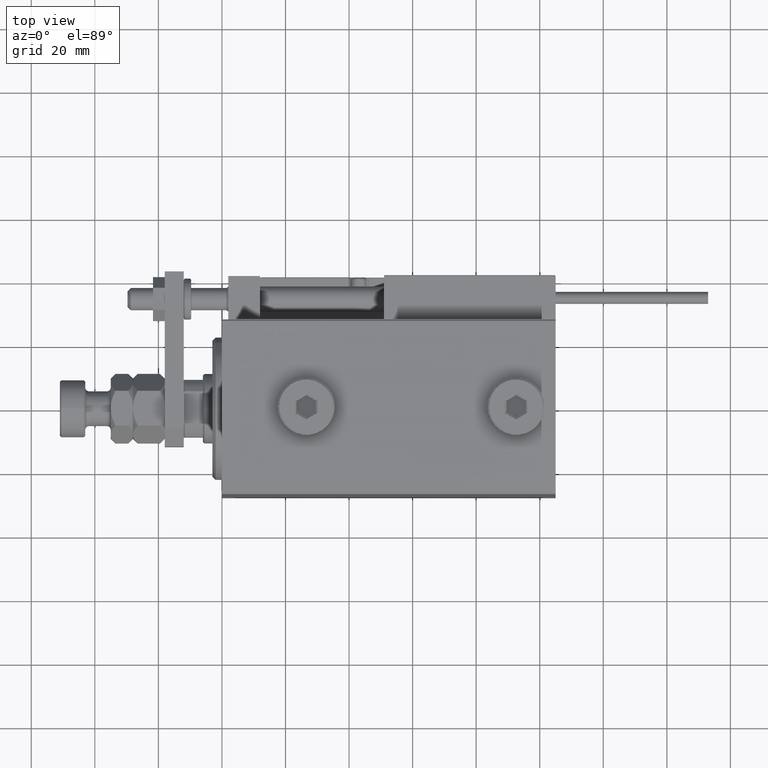
[diagram: clean part render]
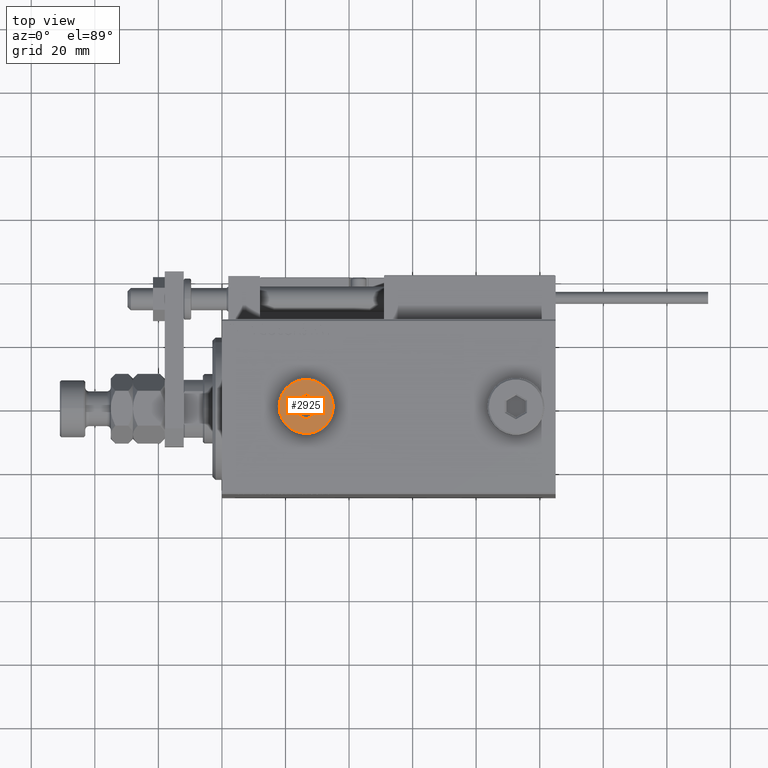
[diagram: same view with one face highlighted and labeled with its STEP entity id]
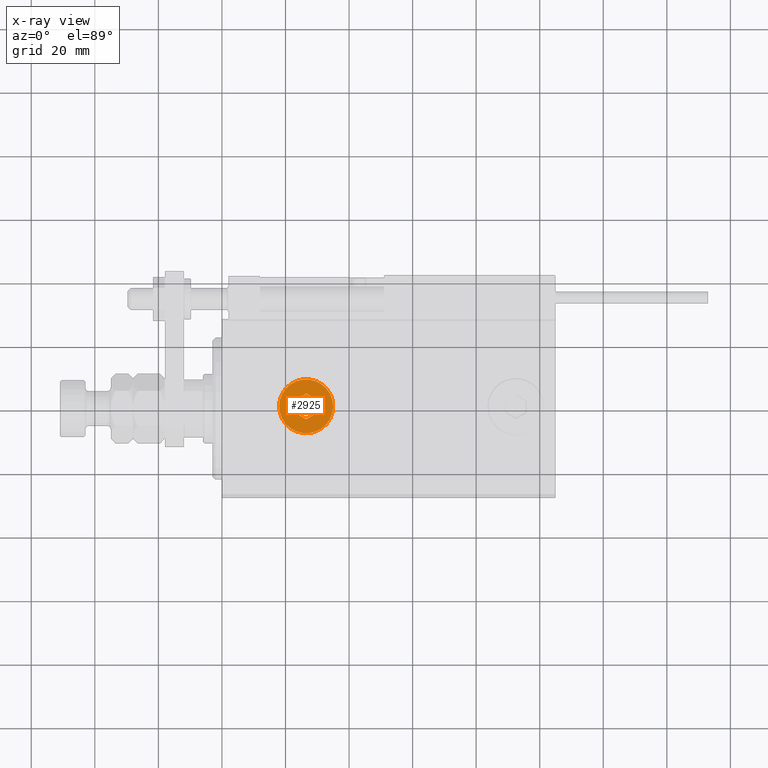
[diagram: x-ray of the same camera — body ghosted, the highlighted face saturated]
A machine part, top view. The second image highlights one B-rep face of the part: STEP entity #2925.
The next image is the same camera in x-ray: the body ghosted, the highlighted face saturated — about 0% of this face is hidden behind the body in this view.
In plain terms, the highlighted planar face has unit normal (0, 0, 1).
Its self-contained STEP definition (entity closure, byte-faithful):
#137 = FACE_OUTER_BOUND ( 'NONE', #45771, .T. ) ;
#154 = LINE ( 'NONE', #17636, #21721 ) ;
#2781 = ORIENTED_EDGE ( 'NONE', *, *, #39955, .T. ) ;
#2925 = ADVANCED_FACE ( 'NONE', ( #37004, #137 ), #19811, .T. ) ;
#4566 = VERTEX_POINT ( 'NONE', #15065 ) ;
#4895 = VERTEX_POINT ( 'NONE', #14729 ) ;
#4966 = DIRECTION ( 'NONE',  ( 0.8660254037844387076, -0.4999999999999998890, 0.000000000000000000 ) ) ;
#4997 = DIRECTION ( 'NONE',  ( 0.000000000000000000, 1.000000000000000000, 0.000000000000000000 ) ) ;
#5001 = EDGE_CURVE ( 'NONE', #5266, #10984, #154, .T. ) ;
#5266 = VERTEX_POINT ( 'NONE', #10893 ) ;
#5427 = DIRECTION ( 'NONE',  ( -0.8660254037844387076, -0.4999999999999998890, 0.000000000000000000 ) ) ;
#6415 = VECTOR ( 'NONE', #26899, 1000.000000000000114 ) ;
#7424 = DIRECTION ( 'NONE',  ( 0.000000000000000000, -1.000000000000000000, 0.000000000000000000 ) ) ;
#8223 = CARTESIAN_POINT ( 'NONE',  ( 3.500000000000006661, -1.732050807568878303, 5.000000000000000000 ) ) ;
#8404 = AXIS2_PLACEMENT_3D ( 'NONE', #47727, #10355, #23004 ) ;
#8947 = LINE ( 'NONE', #50594, #23257 ) ;
#9051 = EDGE_CURVE ( 'NONE', #4566, #4895, #25164, .T. ) ;
#9622 = CARTESIAN_POINT ( 'NONE',  ( -3.500000000000006661, 2.020725942163692945, 5.000000000000000000 ) ) ;
#10355 = DIRECTION ( 'NONE',  ( 0.000000000000000000, 0.000000000000000000, 1.000000000000000000 ) ) ;
#10759 = VECTOR ( 'NONE', #7424, 1000.000000000000000 ) ;
#10893 = CARTESIAN_POINT ( 'NONE',  ( -3.500000000000006661, -2.020725942163694278, 5.000000000000000000 ) ) ;
#10984 = VERTEX_POINT ( 'NONE', #9622 ) ;
#11049 = ORIENTED_EDGE ( 'NONE', *, *, #50569, .T. ) ;
#11224 = CIRCLE ( 'NONE', #41282, 8.500000000000010658 ) ;
#12509 = CARTESIAN_POINT ( 'NONE',  ( -8.500000000000010658, 0.000000000000000000, 5.000000000000000000 ) ) ;
#12528 = DIRECTION ( 'NONE',  ( 0.000000000000000000, 0.000000000000000000, 1.000000000000000000 ) ) ;
#13904 = VECTOR ( 'NONE', #43344, 1000.000000000000000 ) ;
#14729 = CARTESIAN_POINT ( 'NONE',  ( 3.500000000000006661, 2.020725942163694722, 5.000000000000000000 ) ) ;
#15065 = CARTESIAN_POINT ( 'NONE',  ( 1.590596867181068292E-15, 4.041451884327386779, 5.000000000000000000 ) ) ;
#16559 = CARTESIAN_POINT ( 'NONE',  ( 0.000000000000000000, 0.000000000000000000, 5.000000000000000000 ) ) ;
#17328 = ORIENTED_EDGE ( 'NONE', *, *, #37421, .T. ) ;
#17636 = CARTESIAN_POINT ( 'NONE',  ( -3.500000000000006661, 1.732050807568878081, 5.000000000000000000 ) ) ;
#19811 = PLANE ( 'NONE',  #31926 ) ;
#20874 = DIRECTION ( 'NONE',  ( 1.000000000000000000, 0.000000000000000000, 0.000000000000000000 ) ) ;
#21721 = VECTOR ( 'NONE', #4997, 1000.000000000000000 ) ;
#23004 = DIRECTION ( 'NONE',  ( 1.000000000000000000, 0.000000000000000000, 0.000000000000000000 ) ) ;
#23146 = VERTEX_POINT ( 'NONE', #40152 ) ;
#23182 = CARTESIAN_POINT ( 'NONE',  ( -0.2500000000000027756, 3.897114317029978459, 5.000000000000000000 ) ) ;
#23257 = VECTOR ( 'NONE', #5427, 1000.000000000000000 ) ;
#23679 = LINE ( 'NONE', #43832, #6415 ) ;
#24358 = VERTEX_POINT ( 'NONE', #43533 ) ;
#25164 = LINE ( 'NONE', #44800, #49191 ) ;
#25496 = VERTEX_POINT ( 'NONE', #32188 ) ;
#26446 = CIRCLE ( 'NONE', #8404, 8.500000000000010658 ) ;
#26656 = EDGE_CURVE ( 'NONE', #49670, #23146, #26446, .T. ) ;
#26899 = DIRECTION ( 'NONE',  ( -0.8660254037844385966, 0.4999999999999999445, 0.000000000000000000 ) ) ;
#29450 = CARTESIAN_POINT ( 'NONE',  ( 0.000000000000000000, 0.000000000000000000, 5.000000000000000000 ) ) ;
#31926 = AXIS2_PLACEMENT_3D ( 'NONE', #16559, #46635, #34276 ) ;
#32188 = CARTESIAN_POINT ( 'NONE',  ( -1.006139216460143630E-15, -4.041451884327387667, 5.000000000000000000 ) ) ;
#32272 = ORIENTED_EDGE ( 'NONE', *, *, #5001, .T. ) ;
#32530 = ORIENTED_EDGE ( 'NONE', *, *, #46435, .T. ) ;
#34276 = DIRECTION ( 'NONE',  ( 1.000000000000000000, 0.000000000000000000, -0.000000000000000000 ) ) ;
#36841 = EDGE_CURVE ( 'NONE', #24358, #25496, #8947, .T. ) ;
#37004 = FACE_BOUND ( 'NONE', #40024, .T. ) ;
#37421 = EDGE_CURVE ( 'NONE', #23146, #49670, #11224, .T. ) ;
#39955 = EDGE_CURVE ( 'NONE', #10984, #4566, #52202, .T. ) ;
#40024 = EDGE_LOOP ( 'NONE', ( #32272, #2781, #52924, #11049, #48939, #32530 ) ) ;
#40152 = CARTESIAN_POINT ( 'NONE',  ( 8.500000000000010658, 1.071565949253934716E-15, 5.000000000000000000 ) ) ;
#41282 = AXIS2_PLACEMENT_3D ( 'NONE', #29450, #12528, #20874 ) ;
#43344 = DIRECTION ( 'NONE',  ( 0.8660254037844387076, 0.4999999999999998335, 0.000000000000000000 ) ) ;
#43533 = CARTESIAN_POINT ( 'NONE',  ( 3.500000000000006661, -2.020725942163693833, 5.000000000000000000 ) ) ;
#43832 = CARTESIAN_POINT ( 'NONE',  ( -3.250000000000003109, -2.165063509461102598, 5.000000000000000000 ) ) ;
#44794 = LINE ( 'NONE', #8223, #10759 ) ;
#44800 = CARTESIAN_POINT ( 'NONE',  ( 3.250000000000003109, 2.165063509461103042, 5.000000000000000000 ) ) ;
#45771 = EDGE_LOOP ( 'NONE', ( #51247, #17328 ) ) ;
#46435 = EDGE_CURVE ( 'NONE', #25496, #5266, #23679, .T. ) ;
#46635 = DIRECTION ( 'NONE',  ( 0.000000000000000000, 0.000000000000000000, 1.000000000000000000 ) ) ;
#47727 = CARTESIAN_POINT ( 'NONE',  ( 0.000000000000000000, 0.000000000000000000, 5.000000000000000000 ) ) ;
#48939 = ORIENTED_EDGE ( 'NONE', *, *, #36841, .T. ) ;
#49191 = VECTOR ( 'NONE', #4966, 1000.000000000000000 ) ;
#49670 = VERTEX_POINT ( 'NONE', #12509 ) ;
#50569 = EDGE_CURVE ( 'NONE', #4895, #24358, #44794, .T. ) ;
#50594 = CARTESIAN_POINT ( 'NONE',  ( 0.2500000000000027756, -3.897114317029979347, 5.000000000000000000 ) ) ;
#51247 = ORIENTED_EDGE ( 'NONE', *, *, #26656, .T. ) ;
#52202 = LINE ( 'NONE', #23182, #13904 ) ;
#52924 = ORIENTED_EDGE ( 'NONE', *, *, #9051, .T. ) ;